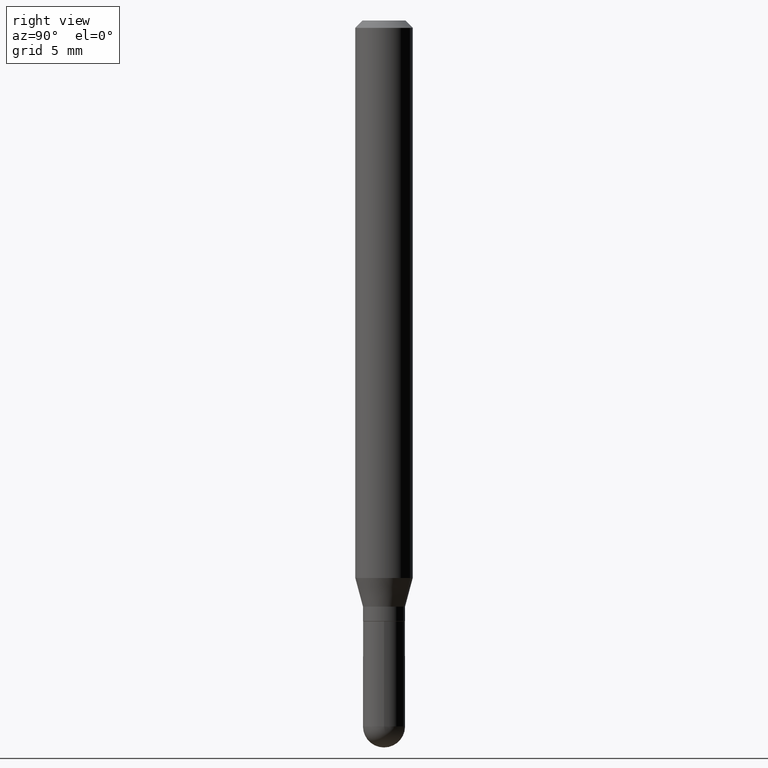
[diagram: clean part render]
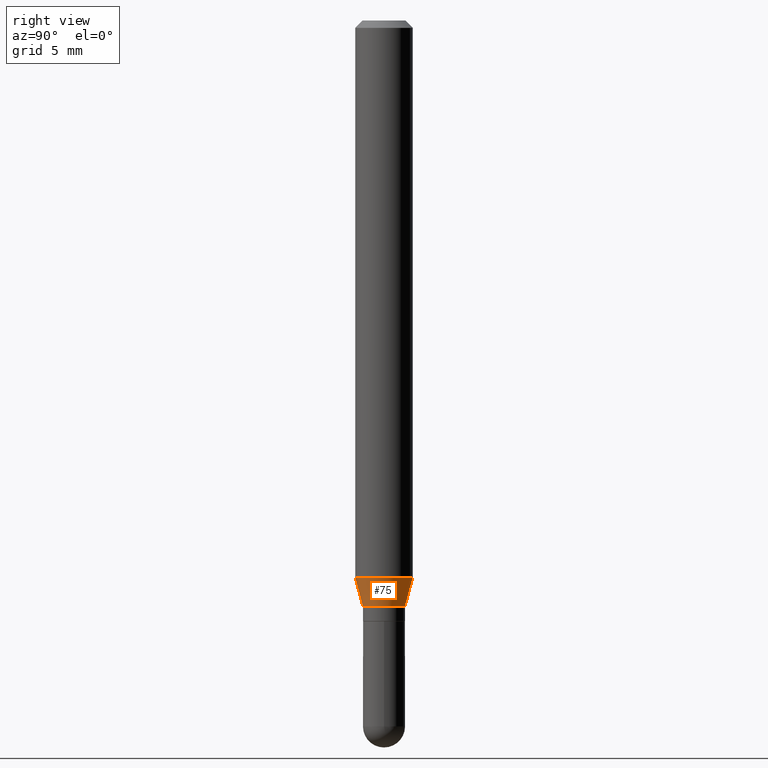
[diagram: same view with one face highlighted and labeled with its STEP entity id]
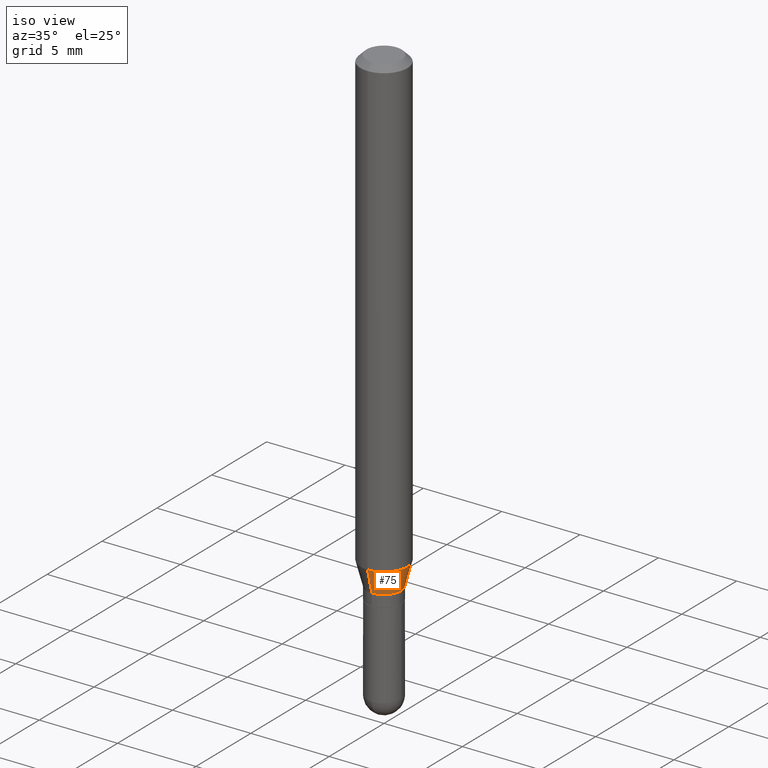
[diagram: same view with one face highlighted and labeled with its STEP entity id]
A machine part, right view. The second image highlights one B-rep face of the part: STEP entity #75.
A second angle (iso view) of the same face is appended — the face is thin or edge-on in the first view.
In plain terms, the highlighted conical surface has half-angle 15 deg.
Its self-contained STEP definition (entity closure, byte-faithful):
#2 = VERTEX_POINT ( 'NONE', #510 ) ;
#49 = EDGE_LOOP ( 'NONE', ( #69, #143, #364, #478 ) ) ;
#54 = EDGE_CURVE ( 'NONE', #262, #233, #311, .T. ) ;
#61 = VERTEX_POINT ( 'NONE', #416 ) ;
#69 = ORIENTED_EDGE ( 'NONE', *, *, #156, .T. ) ;
#71 = LINE ( 'NONE', #237, #202 ) ;
#75 = ADVANCED_FACE ( 'NONE', ( #281 ), #397, .T. ) ;
#82 = CARTESIAN_POINT ( 'NONE',  ( 2.949486445781884438E-29, -4.211066307712367159E-15, -1.206099999999999728 ) ) ;
#86 = CARTESIAN_POINT ( 'NONE',  ( -4.123439461173459788E-16, -0.05905000000000400207, -1.147320199780789585 ) ) ;
#95 = CARTESIAN_POINT ( 'NONE',  ( 2.805741960223202757E-29, -4.005838187094525059E-15, -1.147320199780789807 ) ) ;
#111 = DIRECTION ( 'NONE',  ( -6.982962677686265922E-15, -1.000000000000000000, 3.154558884138878184E-15 ) ) ;
#115 = DIRECTION ( 'NONE',  ( -1.807323732225332900E-15, -0.2588190451025185745, 0.9659258262890689783 ) ) ;
#116 = CARTESIAN_POINT ( 'NONE',  ( 2.949486445781884438E-29, -4.211066307712367159E-15, -1.206099999999999728 ) ) ;
#123 = AXIS2_PLACEMENT_3D ( 'NONE', #82, #323, #127 ) ;
#127 = DIRECTION ( 'NONE',  ( -6.982962677686265922E-15, -1.000000000000000000, 3.154558884138878184E-15 ) ) ;
#143 = ORIENTED_EDGE ( 'NONE', *, *, #231, .T. ) ;
#147 = EDGE_CURVE ( 'NONE', #233, #2, #394, .T. ) ;
#156 = EDGE_CURVE ( 'NONE', #262, #61, #182, .T. ) ;
#182 = CIRCLE ( 'NONE', #506, 0.04329999999999991495 ) ;
#202 = VECTOR ( 'NONE', #446, 39.37007874015748143 ) ;
#214 = AXIS2_PLACEMENT_3D ( 'NONE', #95, #254, #443 ) ;
#231 = EDGE_CURVE ( 'NONE', #61, #2, #71, .T. ) ;
#233 = VERTEX_POINT ( 'NONE', #86 ) ;
#237 = CARTESIAN_POINT ( 'NONE',  ( 3.076650045841522105E-16, 0.04329999999999570998, -1.206099999999999950 ) ) ;
#241 = VECTOR ( 'NONE', #115, 39.37007874015748143 ) ;
#254 = DIRECTION ( 'NONE',  ( -2.445474210912764340E-29, 3.491473598965564778E-15, 1.000000000000000000 ) ) ;
#262 = VERTEX_POINT ( 'NONE', #296 ) ;
#281 = FACE_OUTER_BOUND ( 'NONE', #49, .T. ) ;
#296 = CARTESIAN_POINT ( 'NONE',  ( -3.023622839437852389E-16, -0.04330000000000412685, -1.206099999999999506 ) ) ;
#311 = LINE ( 'NONE', #473, #241 ) ;
#323 = DIRECTION ( 'NONE',  ( -2.445474210912764340E-29, 3.491473598965564778E-15, 1.000000000000000000 ) ) ;
#364 = ORIENTED_EDGE ( 'NONE', *, *, #147, .F. ) ;
#394 = CIRCLE ( 'NONE', #214, 0.05904999999999999832 ) ;
#397 = CONICAL_SURFACE ( 'NONE', #123, 0.04329999999999991495, 0.2617993877991506846 ) ;
#416 = CARTESIAN_POINT ( 'NONE',  ( 3.636202450252598047E-16, 0.04329999999999570998, -1.206099999999999950 ) ) ;
#443 = DIRECTION ( 'NONE',  ( -6.982962677686265922E-15, -1.000000000000000000, 4.626330217890369336E-15 ) ) ;
#446 = DIRECTION ( 'NONE',  ( 1.839019923739603076E-15, 0.2588190451025253469, 0.9659258262890670910 ) ) ;
#473 = CARTESIAN_POINT ( 'NONE',  ( -3.023622839437852389E-16, -0.04330000000000412685, -1.206099999999999506 ) ) ;
#478 = ORIENTED_EDGE ( 'NONE', *, *, #54, .F. ) ;
#499 = DIRECTION ( 'NONE',  ( -2.445474210912764340E-29, 3.491473598965564778E-15, 1.000000000000000000 ) ) ;
#506 = AXIS2_PLACEMENT_3D ( 'NONE', #116, #499, #111 ) ;
#510 = CARTESIAN_POINT ( 'NONE',  ( 4.195754854663670538E-16, 0.05904999999999599458, -1.147320199780790029 ) ) ;